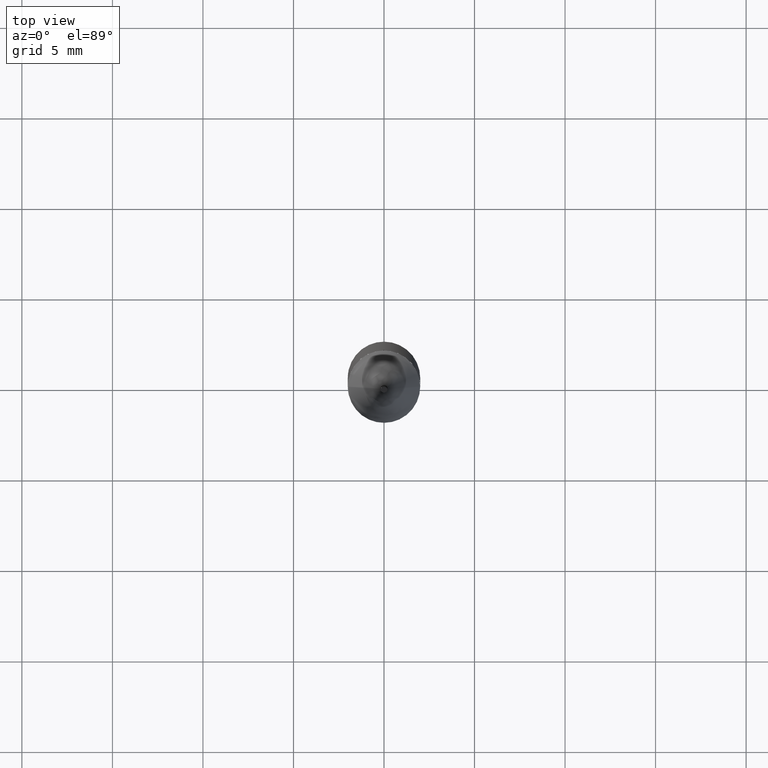
[diagram: clean part render]
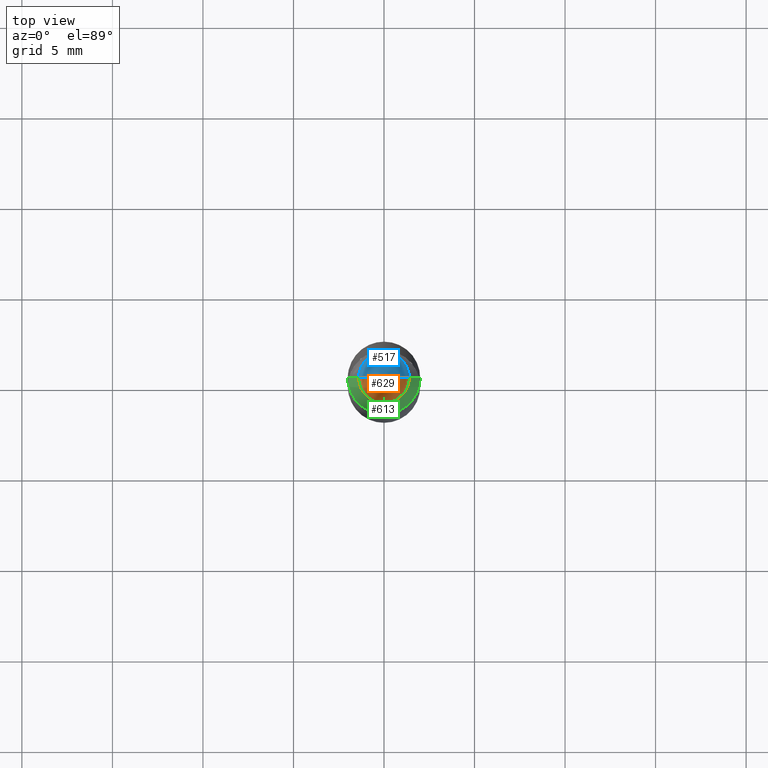
[diagram: same view with three faces highlighted in distinct colors, each labeled with its STEP entity id]
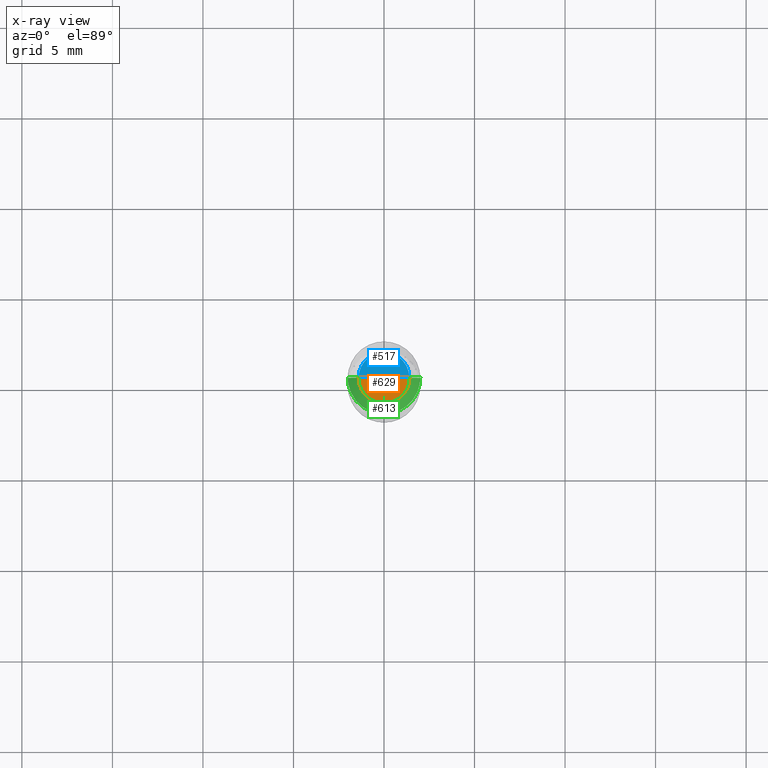
[diagram: x-ray of the same camera — body ghosted, the three highlighted faces saturated]
A machine part, top view with three faces highlighted in distinct colors.
The next image is the same camera in x-ray (body ghosted, the three faces saturated) — at least one of them is partly hidden behind the body in this view.
Their STEP definitions:

[orange] entity #629 — the highlighted face is a freeform B-spline surface patch.
#235=CARTESIAN_POINT('',(1.4,0.0,28.282));
#239=CARTESIAN_POINT('',(-1.4,0.0,28.282));
#240=CARTESIAN_POINT('',(0.0,0.0,28.282));
#250=CARTESIAN_POINT('',(-1.4,-1.4,28.282));
#251=CARTESIAN_POINT('',(0.0,-1.4,28.282));
#252=CARTESIAN_POINT('',(1.4,-1.4,28.282));
#614=(
BOUNDED_SURFACE()
B_SPLINE_SURFACE(1,2,(
(#239,#250,#251,#252,#235),
(#240,#240,#240,#240,#240)
), .UNSPECIFIED.,.F.,.F.,.F.)
B_SPLINE_SURFACE_WITH_KNOTS((2,2),(3,2,3),(
0.0,1.0),(
0.0,0.5,1.0), .UNSPECIFIED.)
GEOMETRIC_REPRESENTATION_ITEM()
RATIONAL_B_SPLINE_SURFACE(((1.0,0.707106781187,1.0,0.707106781187,1.0),
(1.0,0.707106781187,1.0,0.707106781187,1.0)
))
REPRESENTATION_ITEM('')
SURFACE()
);
#615=(
BOUNDED_CURVE()
B_SPLINE_CURVE(1,(#240,#235),.UNSPECIFIED.,.F.,.F.)
B_SPLINE_CURVE_WITH_KNOTS((2,2),
(0.0,1.0),.UNSPECIFIED.)
CURVE()
GEOMETRIC_REPRESENTATION_ITEM()
RATIONAL_B_SPLINE_CURVE((1.0,1.0))
REPRESENTATION_ITEM('')
);
#616=(
BOUNDED_CURVE()
B_SPLINE_CURVE(2,(#235,#252,#251,#250,#239),.UNSPECIFIED.,.F.,.F.)
B_SPLINE_CURVE_WITH_KNOTS((3,2,3),
(0.0,0.5,1.0),.UNSPECIFIED.)
CURVE()
GEOMETRIC_REPRESENTATION_ITEM()
RATIONAL_B_SPLINE_CURVE((1.0,0.707106781187,1.0,0.707106781187,1.0))
REPRESENTATION_ITEM('')
);
#617=(
BOUNDED_CURVE()
B_SPLINE_CURVE(1,(#239,#240),.UNSPECIFIED.,.F.,.F.)
B_SPLINE_CURVE_WITH_KNOTS((2,2),
(0.0,1.0),.UNSPECIFIED.)
CURVE()
GEOMETRIC_REPRESENTATION_ITEM()
RATIONAL_B_SPLINE_CURVE((1.0,1.0))
REPRESENTATION_ITEM('')
);
#618=VERTEX_POINT('',#235);
#619=VERTEX_POINT('',#239);
#620=VERTEX_POINT('',#240);
#621=EDGE_CURVE('',#620,#618,#615,.T.);
#622=EDGE_CURVE('',#618,#619,#616,.T.);
#623=EDGE_CURVE('',#619,#620,#617,.T.);
#624=ORIENTED_EDGE('',*,*,#621,.T.);
#625=ORIENTED_EDGE('',*,*,#622,.T.);
#626=ORIENTED_EDGE('',*,*,#623,.T.);
#627=EDGE_LOOP('',(#624,#625,#626));
#628=FACE_OUTER_BOUND('',#627,.T.);
#629=ADVANCED_FACE('',(#628),#614,.T.);

[blue] entity #517 — the highlighted face is a freeform B-spline surface patch.
#235=CARTESIAN_POINT('',(1.4,0.0,28.282));
#236=CARTESIAN_POINT('',(1.4,1.4,28.282));
#237=CARTESIAN_POINT('',(0.0,1.4,28.282));
#238=CARTESIAN_POINT('',(-1.4,1.4,28.282));
#239=CARTESIAN_POINT('',(-1.4,0.0,28.282));
#240=CARTESIAN_POINT('',(0.0,0.0,28.282));
#502=(
BOUNDED_SURFACE()
B_SPLINE_SURFACE(1,2,(
(#235,#236,#237,#238,#239),
(#240,#240,#240,#240,#240)
), .UNSPECIFIED.,.F.,.F.,.F.)
B_SPLINE_SURFACE_WITH_KNOTS((2,2),(3,2,3),(
0.0,1.0),(
0.0,0.5,1.0), .UNSPECIFIED.)
GEOMETRIC_REPRESENTATION_ITEM()
RATIONAL_B_SPLINE_SURFACE(((1.0,0.707106781187,1.0,0.707106781187,1.0),
(1.0,0.707106781187,1.0,0.707106781187,1.0)
))
REPRESENTATION_ITEM('')
SURFACE()
);
#503=(
BOUNDED_CURVE()
B_SPLINE_CURVE(1,(#240,#235),.UNSPECIFIED.,.F.,.F.)
B_SPLINE_CURVE_WITH_KNOTS((2,2),
(0.0,1.0),.UNSPECIFIED.)
CURVE()
GEOMETRIC_REPRESENTATION_ITEM()
RATIONAL_B_SPLINE_CURVE((1.0,1.0))
REPRESENTATION_ITEM('')
);
#504=(
BOUNDED_CURVE()
B_SPLINE_CURVE(2,(#235,#236,#237,#238,#239),.UNSPECIFIED.,.F.,.F.)
B_SPLINE_CURVE_WITH_KNOTS((3,2,3),
(0.0,0.5,1.0),.UNSPECIFIED.)
CURVE()
GEOMETRIC_REPRESENTATION_ITEM()
RATIONAL_B_SPLINE_CURVE((1.0,0.707106781187,1.0,0.707106781187,1.0))
REPRESENTATION_ITEM('')
);
#505=(
BOUNDED_CURVE()
B_SPLINE_CURVE(1,(#239,#240),.UNSPECIFIED.,.F.,.F.)
B_SPLINE_CURVE_WITH_KNOTS((2,2),
(0.0,1.0),.UNSPECIFIED.)
CURVE()
GEOMETRIC_REPRESENTATION_ITEM()
RATIONAL_B_SPLINE_CURVE((1.0,1.0))
REPRESENTATION_ITEM('')
);
#506=VERTEX_POINT('',#235);
#507=VERTEX_POINT('',#239);
#508=VERTEX_POINT('',#240);
#509=EDGE_CURVE('',#508,#506,#503,.T.);
#510=EDGE_CURVE('',#506,#507,#504,.T.);
#511=EDGE_CURVE('',#507,#508,#505,.T.);
#512=ORIENTED_EDGE('',*,*,#509,.T.);
#513=ORIENTED_EDGE('',*,*,#510,.T.);
#514=ORIENTED_EDGE('',*,*,#511,.T.);
#515=EDGE_LOOP('',(#512,#513,#514));
#516=FACE_OUTER_BOUND('',#515,.T.);
#517=ADVANCED_FACE('',(#516),#502,.T.);

[green] entity #613 — the highlighted face is a freeform B-spline surface patch.
#230=CARTESIAN_POINT('',(2.0,0.0,27.682));
#234=CARTESIAN_POINT('',(-2.0,0.0,27.682));
#235=CARTESIAN_POINT('',(1.4,0.0,28.282));
#239=CARTESIAN_POINT('',(-1.4,0.0,28.282));
#247=CARTESIAN_POINT('',(-2.0,-2.0,27.682));
#248=CARTESIAN_POINT('',(0.0,-2.0,27.682));
#249=CARTESIAN_POINT('',(2.0,-2.0,27.682));
#250=CARTESIAN_POINT('',(-1.4,-1.4,28.282));
#251=CARTESIAN_POINT('',(0.0,-1.4,28.282));
#252=CARTESIAN_POINT('',(1.4,-1.4,28.282));
#594=(
BOUNDED_SURFACE()
B_SPLINE_SURFACE(1,2,(
(#234,#247,#248,#249,#230),
(#239,#250,#251,#252,#235)
), .UNSPECIFIED.,.F.,.F.,.F.)
B_SPLINE_SURFACE_WITH_KNOTS((2,2),(3,2,3),(
0.0,1.0),(
0.0,0.5,1.0), .UNSPECIFIED.)
GEOMETRIC_REPRESENTATION_ITEM()
RATIONAL_B_SPLINE_SURFACE(((1.0,0.707106781187,1.0,0.707106781187,1.0),
(1.0,0.707106781187,1.0,0.707106781187,1.0)
))
REPRESENTATION_ITEM('')
SURFACE()
);
#595=(
BOUNDED_CURVE()
B_SPLINE_CURVE(2,(#239,#250,#251,#252,#235),.UNSPECIFIED.,.F.,.F.)
B_SPLINE_CURVE_WITH_KNOTS((3,2,3),
(0.0,0.5,1.0),.UNSPECIFIED.)
CURVE()
GEOMETRIC_REPRESENTATION_ITEM()
RATIONAL_B_SPLINE_CURVE((1.0,0.707106781187,1.0,0.707106781187,1.0))
REPRESENTATION_ITEM('')
);
#596=(
BOUNDED_CURVE()
B_SPLINE_CURVE(1,(#235,#230),.UNSPECIFIED.,.F.,.F.)
B_SPLINE_CURVE_WITH_KNOTS((2,2),
(0.0,1.0),.UNSPECIFIED.)
CURVE()
GEOMETRIC_REPRESENTATION_ITEM()
RATIONAL_B_SPLINE_CURVE((1.0,1.0))
REPRESENTATION_ITEM('')
);
#597=(
BOUNDED_CURVE()
B_SPLINE_CURVE(2,(#230,#249,#248,#247,#234),.UNSPECIFIED.,.F.,.F.)
B_SPLINE_CURVE_WITH_KNOTS((3,2,3),
(0.0,0.5,1.0),.UNSPECIFIED.)
CURVE()
GEOMETRIC_REPRESENTATION_ITEM()
RATIONAL_B_SPLINE_CURVE((1.0,0.707106781187,1.0,0.707106781187,1.0))
REPRESENTATION_ITEM('')
);
#598=(
BOUNDED_CURVE()
B_SPLINE_CURVE(1,(#234,#239),.UNSPECIFIED.,.F.,.F.)
B_SPLINE_CURVE_WITH_KNOTS((2,2),
(0.0,1.0),.UNSPECIFIED.)
CURVE()
GEOMETRIC_REPRESENTATION_ITEM()
RATIONAL_B_SPLINE_CURVE((1.0,1.0))
REPRESENTATION_ITEM('')
);
#599=VERTEX_POINT('',#230);
#600=VERTEX_POINT('',#234);
#601=VERTEX_POINT('',#235);
#602=VERTEX_POINT('',#239);
#603=EDGE_CURVE('',#602,#601,#595,.T.);
#604=EDGE_CURVE('',#601,#599,#596,.T.);
#605=EDGE_CURVE('',#599,#600,#597,.T.);
#606=EDGE_CURVE('',#600,#602,#598,.T.);
#607=ORIENTED_EDGE('',*,*,#603,.T.);
#608=ORIENTED_EDGE('',*,*,#604,.T.);
#609=ORIENTED_EDGE('',*,*,#605,.T.);
#610=ORIENTED_EDGE('',*,*,#606,.T.);
#611=EDGE_LOOP('',(#607,#608,#609,#610));
#612=FACE_OUTER_BOUND('',#611,.T.);
#613=ADVANCED_FACE('',(#612),#594,.T.);